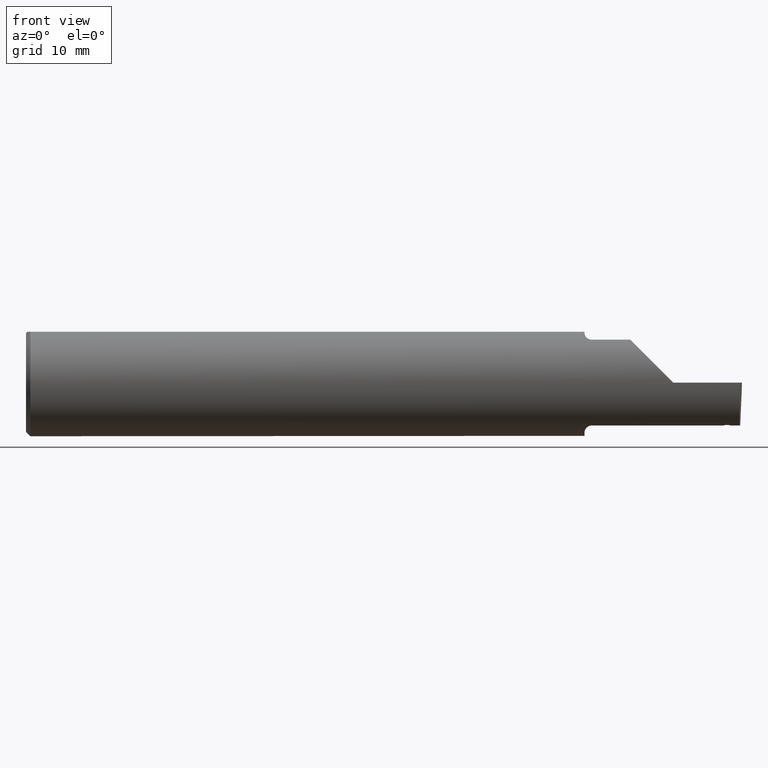
[diagram: clean part render]
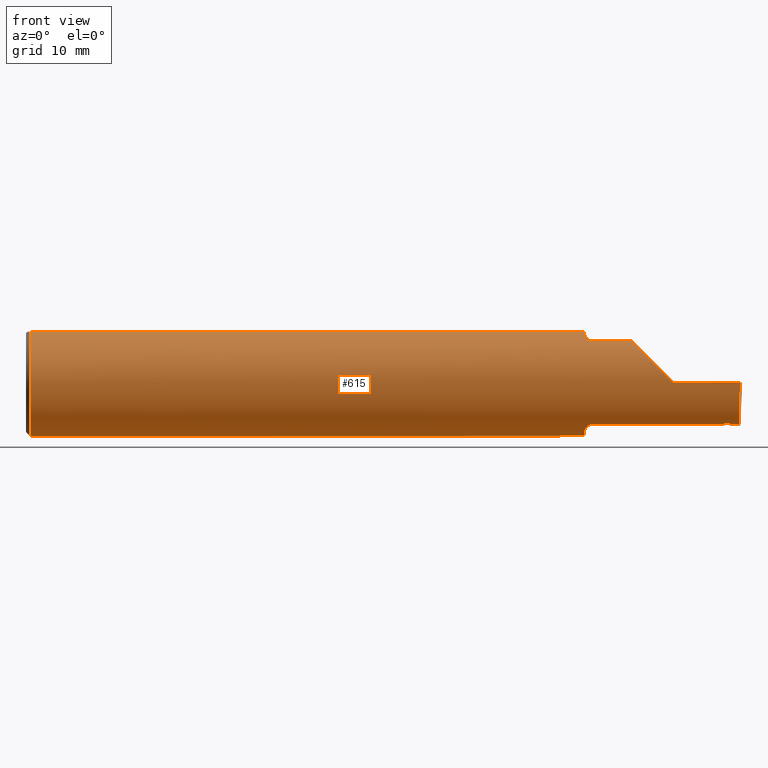
[diagram: same view with one face highlighted and labeled with its STEP entity id]
A machine part, front view. The second image highlights one B-rep face of the part: STEP entity #615.
In plain terms, the highlighted cylindrical surface (partial cylindrical patch) has radius 4.7587 mm, axis along (-1, -0, -0).
Its self-contained STEP definition (entity closure, byte-faithful):
#1 = ORIENTED_EDGE ( 'NONE', *, *, #375, .F. ) ;
#2 = ORIENTED_EDGE ( 'NONE', *, *, #945, .F. ) ;
#23 = CARTESIAN_POINT ( 'NONE',  ( 1.949999999999999956, -0.06851976604679065053, -0.1743704796142198643 ) ) ;
#24 = CARTESIAN_POINT ( 'NONE',  ( 2.445498067408689469, -0.1204029065482854904, -0.1435380930435697644 ) ) ;
#30 = VERTEX_POINT ( 'NONE', #423 ) ;
#35 = ORIENTED_EDGE ( 'NONE', *, *, #426, .F. ) ;
#36 = EDGE_CURVE ( 'NONE', #102, #318, #624, .T. ) ;
#40 = CARTESIAN_POINT ( 'NONE',  ( 1.949999999999999956, -0.06851976604679065053, -0.1743704796142198643 ) ) ;
#46 = CARTESIAN_POINT ( 'NONE',  ( 1.972868998470237667, -0.1172600179964007339, -0.1461167706989302539 ) ) ;
#58 = CARTESIAN_POINT ( 'NONE',  ( 1.954475235432781011, -0.09757364237049404032, -0.1599863467203317124 ) ) ;
#61 = CIRCLE ( 'NONE', #257, 0.1873499999999999888 ) ;
#64 = CARTESIAN_POINT ( 'NONE',  ( 2.113883229301070532, -0.1172600179964006645, 0.1461167706989302539 ) ) ;
#72 = LINE ( 'NONE', #242, #93 ) ;
#78 = EDGE_CURVE ( 'NONE', #318, #149, #469, .T. ) ;
#81 = CARTESIAN_POINT ( 'NONE',  ( 1.952158970028690543, -0.09067355718685699006, 0.1641499263364886163 ) ) ;
#93 = VECTOR ( 'NONE', #322, 39.37007874015748143 ) ;
#98 = ORIENTED_EDGE ( 'NONE', *, *, #715, .F. ) ;
#102 = VERTEX_POINT ( 'NONE', #711 ) ;
#104 = B_SPLINE_CURVE_WITH_KNOTS ( 'NONE', 3,
 ( #285, #46, #611, #126, #709, #368, #463, #442, #58, #859, #941, #271 ),
 .UNSPECIFIED., .F., .F.,
 ( 4, 2, 2, 2, 2, 4 ),
 ( 1.967976973658592312E-07, 0.0001599896235275547862, 0.0003197824493577436779, 0.0006393681010181210276, 0.0009589537526784982146, 0.001278539404338875510 ),
 .UNSPECIFIED. ) ;
#107 = VERTEX_POINT ( 'NONE', #217 ) ;
#114 = CARTESIAN_POINT ( 'NONE',  ( 0.000000000000000000, 0.06039039658753697637, 0.1773499999999999799 ) ) ;
#120 = EDGE_CURVE ( 'NONE', #429, #319, #164, .T. ) ;
#125 = CARTESIAN_POINT ( 'NONE',  ( 2.437567358599292966, -0.1190611272264851528, -0.1446575798142234748 ) ) ;
#126 = CARTESIAN_POINT ( 'NONE',  ( 1.967163414264744503, -0.1151183835841406988, -0.1478135984872521180 ) ) ;
#134 = CARTESIAN_POINT ( 'NONE',  ( 1.949999999999999956, -0.06851976604679065053, 0.1743704796142198643 ) ) ;
#149 = VERTEX_POINT ( 'NONE', #621 ) ;
#150 = EDGE_CURVE ( 'NONE', #30, #896, #1027, .T. ) ;
#152 = CARTESIAN_POINT ( 'NONE',  ( 0.01499999999999999944, -0.06039039658753697637, 0.1773499999999999799 ) ) ;
#163 = CARTESIAN_POINT ( 'NONE',  ( 1.951062863587533558, -0.08334999999998814191, 0.1677879614275171183 ) ) ;
#164 = B_SPLINE_CURVE_WITH_KNOTS ( 'NONE', 3,
 ( #134, #779, #544, #789 ),
 .UNSPECIFIED., .F., .F.,
 ( 4, 4 ),
 ( 4.423516731080786679E-05, 0.0004561457252213468741 ),
 .UNSPECIFIED. ) ;
#166 = VERTEX_POINT ( 'NONE', #874 ) ;
#169 = CARTESIAN_POINT ( 'NONE',  ( 1.954075010165368553, -0.09778159395695858180, 0.1599914159748311027 ) ) ;
#176 = CARTESIAN_POINT ( 'NONE',  ( 2.211500000000000021, -0.1172600179964007477, 0.1461167706989302817 ) ) ;
#181 = ORIENTED_EDGE ( 'NONE', *, *, #367, .F. ) ;
#195 = CARTESIAN_POINT ( 'NONE',  ( 2.452970636338613453, -0.1208513501369361531, -0.1431606568512440725 ) ) ;
#197 = CARTESIAN_POINT ( 'NONE',  ( 2.450479766355329048, -0.1207021382821599764, -0.1432865166685463043 ) ) ;
#198 = CARTESIAN_POINT ( 'NONE',  ( 1.949999999999999956, 0.000000000000000000, 0.000000000000000000 ) ) ;
#202 = EDGE_CURVE ( 'NONE', #430, #107, #386, .T. ) ;
#210 = CYLINDRICAL_SURFACE ( 'NONE', #719, 0.1873499999999999888 ) ;
#215 = CARTESIAN_POINT ( 'NONE',  ( 0.01499999999999756042, 0.06039039658754215278, 0.1773499999999999799 ) ) ;
#217 = CARTESIAN_POINT ( 'NONE',  ( 2.458156987516916026, -0.1172600179964005396, -0.1461167706989303094 ) ) ;
#221 = VECTOR ( 'NONE', #868, 39.37007874015748143 ) ;
#226 = CARTESIAN_POINT ( 'NONE',  ( 2.490903355898018923, -0.1172600179964007477, -0.1461167706989302817 ) ) ;
#242 = CARTESIAN_POINT ( 'NONE',  ( 2.211500000000000021, -0.1172600179964007477, -0.1461167706989302817 ) ) ;
#255 = ORIENTED_EDGE ( 'NONE', *, *, #297, .F. ) ;
#257 = AXIS2_PLACEMENT_3D ( 'NONE', #872, #546, #385 ) ;
#264 = CARTESIAN_POINT ( 'NONE',  ( 2.449234338863458760, -0.1206273854352417213, -0.1433494205884963957 ) ) ;
#271 = CARTESIAN_POINT ( 'NONE',  ( 1.951062863587535334, -0.08334999999999985476, -0.1677879614275112619 ) ) ;
#272 = VECTOR ( 'NONE', #938, 39.37007874015748143 ) ;
#276 = CARTESIAN_POINT ( 'NONE',  ( 1.974999999999999867, -0.1172600179964006922, -0.1461167706989302817 ) ) ;
#279 = CARTESIAN_POINT ( 'NONE',  ( 2.211500000000000021, -0.1172600179964007477, -0.1461167706989302817 ) ) ;
#282 = CARTESIAN_POINT ( 'NONE',  ( 0.000000000000000000, 0.000000000000000000, 0.000000000000000000 ) ) ;
#285 = CARTESIAN_POINT ( 'NONE',  ( 1.974999999999999867, -0.1172600179964006922, -0.1461167706989302817 ) ) ;
#287 = DIRECTION ( 'NONE',  ( 0.000000000000000000, 0.000000000000000000, 1.000000000000000000 ) ) ;
#288 = AXIS2_PLACEMENT_3D ( 'NONE', #393, #957, #1031 ) ;
#290 = CARTESIAN_POINT ( 'NONE',  ( 3.749399456654646757E-32, -0.1873499999999999888, 3.061616997868384127E-16 ) ) ;
#297 = EDGE_CURVE ( 'NONE', #478, #657, #670, .T. ) ;
#317 = CARTESIAN_POINT ( 'NONE',  ( 1.949999999999999956, -0.06851976604679065053, 0.1743704796142198643 ) ) ;
#318 = VERTEX_POINT ( 'NONE', #554 ) ;
#319 = VERTEX_POINT ( 'NONE', #163 ) ;
#322 = DIRECTION ( 'NONE',  ( -1.000000000000000000, -0.000000000000000000, -0.000000000000000000 ) ) ;
#327 = VERTEX_POINT ( 'NONE', #152 ) ;
#329 = B_SPLINE_CURVE_WITH_KNOTS ( 'NONE', 3,
 ( #914, #847, #831, #438, #994, #195 ),
 .UNSPECIFIED., .F., .F.,
 ( 4, 2, 4 ),
 ( 0.0002880367379712531488, 0.0003798719638981552446, 0.0004717071898250573946 ),
 .UNSPECIFIED. ) ;
#337 = CARTESIAN_POINT ( 'NONE',  ( 2.447366197523236586, -0.1205152561587170268, -0.1434437764735944087 ) ) ;
#341 = LINE ( 'NONE', #176, #617 ) ;
#346 = CIRCLE ( 'NONE', #940, 0.1873499999999999888 ) ;
#360 = EDGE_CURVE ( 'NONE', #327, #740, #731, .T. ) ;
#367 = EDGE_CURVE ( 'NONE', #149, #906, #72, .T. ) ;
#368 = CARTESIAN_POINT ( 'NONE',  ( 1.961340974786206282, -0.1102890168945986904, -0.1514792188789464145 ) ) ;
#372 = CARTESIAN_POINT ( 'NONE',  ( 2.260000000000000231, -0.1873499999999999888, 2.939152317953647352E-17 ) ) ;
#375 = EDGE_CURVE ( 'NONE', #746, #166, #516, .T. ) ;
#385 = DIRECTION ( 'NONE',  ( 0.000000000000000000, 0.000000000000000000, 1.000000000000000000 ) ) ;
#386 = LINE ( 'NONE', #279, #272 ) ;
#393 = CARTESIAN_POINT ( 'NONE',  ( 1.949999999999999956, 0.000000000000000000, 0.000000000000000000 ) ) ;
#394 = CARTESIAN_POINT ( 'NONE',  ( 1.961319809340846376, -0.1102629523538396217, 0.1514982751257169247 ) ) ;
#412 = ORIENTED_EDGE ( 'NONE', *, *, #811, .F. ) ;
#418 = ORIENTED_EDGE ( 'NONE', *, *, #549, .F. ) ;
#423 = CARTESIAN_POINT ( 'NONE',  ( 2.493506715846705468, -0.1873499999999999888, 0.000000000000000000 ) ) ;
#425 = LINE ( 'NONE', #114, #464 ) ;
#426 = EDGE_CURVE ( 'NONE', #319, #912, #497, .T. ) ;
#429 = VERTEX_POINT ( 'NONE', #317 ) ;
#430 = VERTEX_POINT ( 'NONE', #226 ) ;
#436 = CARTESIAN_POINT ( 'NONE',  ( 2.451725198846265386, -0.1207767932037570741, -0.1432235952746555019 ) ) ;
#438 = CARTESIAN_POINT ( 'NONE',  ( 2.455366610645390413, -0.1203676099590724330, -0.1435704688917812111 ) ) ;
#442 = CARTESIAN_POINT ( 'NONE',  ( 1.955806801261506855, -0.1009700360460131507, -0.1578590382459147401 ) ) ;
#447 = CARTESIAN_POINT ( 'NONE',  ( 1.950346246588685162, -0.07856197451716395719, -0.1701664510438046507 ) ) ;
#452 = CARTESIAN_POINT ( 'NONE',  ( 2.436647136148047732, -0.1172600179964005812, -0.1461167706989303094 ) ) ;
#463 = CARTESIAN_POINT ( 'NONE',  ( 1.959228130464466089, -0.1072797540790367127, -0.1536407449207395637 ) ) ;
#464 = VECTOR ( 'NONE', #766, 39.37007874015748143 ) ;
#466 = CARTESIAN_POINT ( 'NONE',  ( 2.438025625059659696, -0.1199519675431318100, -0.1439150721173130809 ) ) ;
#469 = B_SPLINE_CURVE_WITH_KNOTS ( 'NONE', 3,
 ( #466, #125, #614, #452 ),
 .UNSPECIFIED., .F., .F.,
 ( 4, 4 ),
 ( 4.610090873601838277E-18, 9.501582085342238167E-05 ),
 .UNSPECIFIED. ) ;
#478 = VERTEX_POINT ( 'NONE', #23 ) ;
#484 = AXIS2_PLACEMENT_3D ( 'NONE', #646, #969, #559 ) ;
#497 = B_SPLINE_CURVE_WITH_KNOTS ( 'NONE', 3,
 ( #737, #81, #169, #889, #394, #800, #958, #726 ),
 .UNSPECIFIED., .F., .F.,
 ( 4, 2, 2, 4 ),
 ( 0.0004561457252213468741, 0.001084815134961798723, 0.001399149839832029146, 0.001713484544702259353 ),
 .UNSPECIFIED. ) ;
#513 = CARTESIAN_POINT ( 'NONE',  ( 2.443629948511212735, -0.1202903368271704132, -0.1436323687961940654 ) ) ;
#515 = ORIENTED_EDGE ( 'NONE', *, *, #916, .F. ) ;
#516 = CIRCLE ( 'NONE', #484, 0.1873499999999999888 ) ;
#537 = CARTESIAN_POINT ( 'NONE',  ( 2.113883229301070532, -0.1172600179964006645, 0.1461167706989302539 ) ) ;
#544 = CARTESIAN_POINT ( 'NONE',  ( 1.950344683557281300, -0.07855153123406181936, 0.1701716388274757685 ) ) ;
#546 = DIRECTION ( 'NONE',  ( -1.000000000000000000, -0.000000000000000000, -0.000000000000000000 ) ) ;
#549 = EDGE_CURVE ( 'NONE', #107, #102, #329, .T. ) ;
#554 = CARTESIAN_POINT ( 'NONE',  ( 2.438025625059659696, -0.1199519675431318100, -0.1439150721173130809 ) ) ;
#559 = DIRECTION ( 'NONE',  ( 0.000000000000000000, 0.000000000000000000, 1.000000000000000000 ) ) ;
#568 = EDGE_CURVE ( 'NONE', #912, #716, #341, .T. ) ;
#589 =( BOUNDED_CURVE ( )  B_SPLINE_CURVE ( 3, ( #612, #1025, #771, #64 ),
 .UNSPECIFIED., .F., .T. ) 
 B_SPLINE_CURVE_WITH_KNOTS ( ( 4, 4 ),
 ( 4.712388980384688786, 5.606916381293136631 ),
 .UNSPECIFIED. ) 
 CURVE ( )  GEOMETRIC_REPRESENTATION_ITEM ( )  RATIONAL_B_SPLINE_CURVE ( ( 1.000000000000000000, 0.9344226172588802060, 0.9344226172588802060, 1.000000000000000000 ) ) 
 REPRESENTATION_ITEM ( '' )  );
#595 = CARTESIAN_POINT ( 'NONE',  ( 2.441761829506831738, -0.1201777670996134612, -0.1437266445542133841 ) ) ;
#606 = CARTESIAN_POINT ( 'NONE',  ( 1.974999999999999867, -0.1172600179964007477, 0.1461167706989302539 ) ) ;
#608 = CARTESIAN_POINT ( 'NONE',  ( 2.490903355898018923, -0.1172600179964007477, -0.1461167706989302817 ) ) ;
#609 = EDGE_CURVE ( 'NONE', #896, #716, #589, .T. ) ;
#611 = CARTESIAN_POINT ( 'NONE',  ( 1.970804171164107332, -0.1167508198888949633, -0.1465276362740037530 ) ) ;
#612 = CARTESIAN_POINT ( 'NONE',  ( 2.260000000000000231, -0.1873499999999999888, 2.939152317953647352E-17 ) ) ;
#614 = CARTESIAN_POINT ( 'NONE',  ( 2.437107804970412239, -0.1181637442922655878, -0.1453915222472295377 ) ) ;
#615 = ADVANCED_FACE ( 'NONE', ( #1023 ), #210, .T. ) ;
#616 = CARTESIAN_POINT ( 'NONE',  ( 1.951062863587535334, -0.08334999999999985476, -0.1677879614275112619 ) ) ;
#617 = VECTOR ( 'NONE', #767, 39.37007874015748143 ) ;
#621 = CARTESIAN_POINT ( 'NONE',  ( 2.436647136148047732, -0.1172600179964005812, -0.1461167706989303094 ) ) ;
#624 = B_SPLINE_CURVE_WITH_KNOTS ( 'NONE', 3,
 ( #995, #436, #197, #264, #337, #24, #513, #595, #1005, #1000 ),
 .UNSPECIFIED., .F., .F.,
 ( 4, 3, 3, 4 ),
 ( 0.000000000000000000, 9.519312345566919849E-05, 0.0002379828170348225011, 0.0003807725187854991847 ),
 .UNSPECIFIED. ) ;
#625 = DIRECTION ( 'NONE',  ( -1.000000000000000000, -0.000000000000000000, -0.000000000000000000 ) ) ;
#628 = CARTESIAN_POINT ( 'NONE',  ( 1.949999999999999956, -0.06039039658753699025, 0.1773499999999999799 ) ) ;
#646 = CARTESIAN_POINT ( 'NONE',  ( 0.01499999999999999944, 0.000000000000000000, 0.000000000000000000 ) ) ;
#657 = VERTEX_POINT ( 'NONE', #932 ) ;
#670 = CIRCLE ( 'NONE', #288, 0.1873499999999999888 ) ;
#684 = CARTESIAN_POINT ( 'NONE',  ( 1.951062863587535334, -0.08334999999999985476, -0.1677879614275112619 ) ) ;
#709 = CARTESIAN_POINT ( 'NONE',  ( 1.965551048069661855, -0.1140002044565611855, -0.1486821290834929865 ) ) ;
#711 = CARTESIAN_POINT ( 'NONE',  ( 2.452970636338613453, -0.1208513501369361531, -0.1431606568512440725 ) ) ;
#715 = EDGE_CURVE ( 'NONE', #166, #327, #61, .T. ) ;
#716 = VERTEX_POINT ( 'NONE', #537 ) ;
#719 = AXIS2_PLACEMENT_3D ( 'NONE', #282, #625, #287 ) ;
#721 = ORIENTED_EDGE ( 'NONE', *, *, #360, .F. ) ;
#726 = CARTESIAN_POINT ( 'NONE',  ( 1.974999999999999867, -0.1172600179964007477, 0.1461167706989302539 ) ) ;
#731 = LINE ( 'NONE', #1036, #974 ) ;
#737 = CARTESIAN_POINT ( 'NONE',  ( 1.951062863587533558, -0.08334999999998814191, 0.1677879614275171183 ) ) ;
#739 =( BOUNDED_CURVE ( )  B_SPLINE_CURVE ( 3, ( #608, #782, #929, #772 ),
 .UNSPECIFIED., .F., .T. ) 
 B_SPLINE_CURVE_WITH_KNOTS ( ( 4, 4 ),
 ( 0.08839520912052888091, 0.9829226100289757406 ),
 .UNSPECIFIED. ) 
 CURVE ( )  GEOMETRIC_REPRESENTATION_ITEM ( )  RATIONAL_B_SPLINE_CURVE ( ( 1.000000000000000000, 0.9344226172588803170, 0.9344226172588803170, 1.000000000000000000 ) ) 
 REPRESENTATION_ITEM ( '' )  );
#740 = VERTEX_POINT ( 'NONE', #628 ) ;
#746 = VERTEX_POINT ( 'NONE', #215 ) ;
#749 = ORIENTED_EDGE ( 'NONE', *, *, #871, .F. ) ;
#750 = ORIENTED_EDGE ( 'NONE', *, *, #78, .F. ) ;
#759 = ORIENTED_EDGE ( 'NONE', *, *, #150, .T. ) ;
#766 = DIRECTION ( 'NONE',  ( -1.000000000000000000, -0.000000000000000000, -0.000000000000000000 ) ) ;
#767 = DIRECTION ( 'NONE',  ( 1.000000000000000000, 0.000000000000000000, 0.000000000000000000 ) ) ;
#771 = CARTESIAN_POINT ( 'NONE',  ( 2.150065971957467070, -0.1623470442677541759, 0.1099340280425336880 ) ) ;
#772 = CARTESIAN_POINT ( 'NONE',  ( 2.493506715846705468, -0.1873499999999999888, 0.000000000000000000 ) ) ;
#779 = CARTESIAN_POINT ( 'NONE',  ( 1.949999999999999512, -0.07360907839729495528, 0.1723706084642000758 ) ) ;
#782 = CARTESIAN_POINT ( 'NONE',  ( 2.491063981715931686, -0.1623470442677541759, -0.1099340280425337851 ) ) ;
#789 = CARTESIAN_POINT ( 'NONE',  ( 1.951062863587533558, -0.08334999999998814191, 0.1677879614275171183 ) ) ;
#800 = CARTESIAN_POINT ( 'NONE',  ( 1.966924463282975211, -0.1152182125075827540, 0.1477647100440765693 ) ) ;
#802 = ORIENTED_EDGE ( 'NONE', *, *, #1014, .T. ) ;
#810 = ORIENTED_EDGE ( 'NONE', *, *, #120, .F. ) ;
#811 = EDGE_CURVE ( 'NONE', #657, #746, #425, .T. ) ;
#821 = VERTEX_POINT ( 'NONE', #684 ) ;
#822 = ORIENTED_EDGE ( 'NONE', *, *, #202, .F. ) ;
#828 = ORIENTED_EDGE ( 'NONE', *, *, #609, .T. ) ;
#831 = CARTESIAN_POINT ( 'NONE',  ( 2.457039432924773781, -0.1189753745793367401, -0.1447262979170400310 ) ) ;
#847 = CARTESIAN_POINT ( 'NONE',  ( 2.457654169373977737, -0.1181371521106752837, -0.1454128627112770134 ) ) ;
#859 = CARTESIAN_POINT ( 'NONE',  ( 1.952380638915944600, -0.09060738690120603844, -0.1640321561807270845 ) ) ;
#863 = DIRECTION ( 'NONE',  ( 0.000000000000000000, 0.000000000000000000, -1.000000000000000000 ) ) ;
#868 = DIRECTION ( 'NONE',  ( -1.000000000000000000, -0.000000000000000000, -0.000000000000000000 ) ) ;
#871 = EDGE_CURVE ( 'NONE', #906, #821, #104, .T. ) ;
#872 = CARTESIAN_POINT ( 'NONE',  ( 0.01499999999999999944, 0.000000000000000000, 0.000000000000000000 ) ) ;
#874 = CARTESIAN_POINT ( 'NONE',  ( 0.01499999999999999944, 0.000000000000000000, -0.1873499999999999888 ) ) ;
#880 = B_SPLINE_CURVE_WITH_KNOTS ( 'NONE', 3,
 ( #616, #447, #1007, #40 ),
 .UNSPECIFIED., .F., .F.,
 ( 4, 4 ),
 ( 0.001278539404338875510, 0.001694873732696221573 ),
 .UNSPECIFIED. ) ;
#889 = CARTESIAN_POINT ( 'NONE',  ( 1.959249444250374061, -0.1073163636891284189, 0.1536158790136665786 ) ) ;
#895 = DIRECTION ( 'NONE',  ( 1.000000000000000000, 0.000000000000000000, 0.000000000000000000 ) ) ;
#896 = VERTEX_POINT ( 'NONE', #372 ) ;
#906 = VERTEX_POINT ( 'NONE', #276 ) ;
#912 = VERTEX_POINT ( 'NONE', #606 ) ;
#914 = CARTESIAN_POINT ( 'NONE',  ( 2.458156987516916026, -0.1172600179964005396, -0.1461167706989303094 ) ) ;
#916 = EDGE_CURVE ( 'NONE', #821, #478, #880, .T. ) ;
#920 = ORIENTED_EDGE ( 'NONE', *, *, #36, .F. ) ;
#929 = CARTESIAN_POINT ( 'NONE',  ( 2.491992669264299742, -0.1873499999999999888, -0.05781030015605114619 ) ) ;
#932 = CARTESIAN_POINT ( 'NONE',  ( 1.949999999999999956, 0.06039039658754216666, 0.1773499999999999799 ) ) ;
#935 = DIRECTION ( 'NONE',  ( 1.000000000000000000, 0.000000000000000000, 0.000000000000000000 ) ) ;
#938 = DIRECTION ( 'NONE',  ( -1.000000000000000000, -0.000000000000000000, -0.000000000000000000 ) ) ;
#940 = AXIS2_PLACEMENT_3D ( 'NONE', #198, #935, #863 ) ;
#941 = CARTESIAN_POINT ( 'NONE',  ( 1.951612951569643206, -0.08702537370779851733, -0.1659621904011591709 ) ) ;
#945 = EDGE_CURVE ( 'NONE', #740, #429, #346, .T. ) ;
#957 = DIRECTION ( 'NONE',  ( 1.000000000000000000, 0.000000000000000000, 0.000000000000000000 ) ) ;
#958 = CARTESIAN_POINT ( 'NONE',  ( 1.970724556588813403, -0.1172600179964060907, 0.1461167706989260906 ) ) ;
#965 = EDGE_LOOP ( 'NONE', ( #822, #802, #759, #828, #1034, #35, #810, #2, #721, #98, #1, #412, #255, #515, #749, #181, #750, #920, #418 ) ) ;
#969 = DIRECTION ( 'NONE',  ( -1.000000000000000000, -0.000000000000000000, -0.000000000000000000 ) ) ;
#974 = VECTOR ( 'NONE', #895, 39.37007874015748143 ) ;
#994 = CARTESIAN_POINT ( 'NONE',  ( 2.454215874547053922, -0.1209258949558987134, -0.1430977286542417515 ) ) ;
#995 = CARTESIAN_POINT ( 'NONE',  ( 2.452970636338613453, -0.1208513501369361531, -0.1431606568512440725 ) ) ;
#1000 = CARTESIAN_POINT ( 'NONE',  ( 2.438025625059659696, -0.1199519675431318100, -0.1439150721173130809 ) ) ;
#1005 = CARTESIAN_POINT ( 'NONE',  ( 2.439893721692793616, -0.1200649772597332660, -0.1438208794962179404 ) ) ;
#1007 = CARTESIAN_POINT ( 'NONE',  ( 1.949999999999999956, -0.07359296612170562746, -0.1723769398647691520 ) ) ;
#1014 = EDGE_CURVE ( 'NONE', #430, #30, #739, .T. ) ;
#1023 = FACE_OUTER_BOUND ( 'NONE', #965, .T. ) ;
#1025 = CARTESIAN_POINT ( 'NONE',  ( 2.202189699843949633, -0.1873500000000000998, 0.05781030015605104211 ) ) ;
#1027 = LINE ( 'NONE', #290, #221 ) ;
#1031 = DIRECTION ( 'NONE',  ( 0.000000000000000000, 0.000000000000000000, -1.000000000000000000 ) ) ;
#1034 = ORIENTED_EDGE ( 'NONE', *, *, #568, .F. ) ;
#1036 = CARTESIAN_POINT ( 'NONE',  ( 0.000000000000000000, -0.06039039658753697637, 0.1773499999999999799 ) ) ;